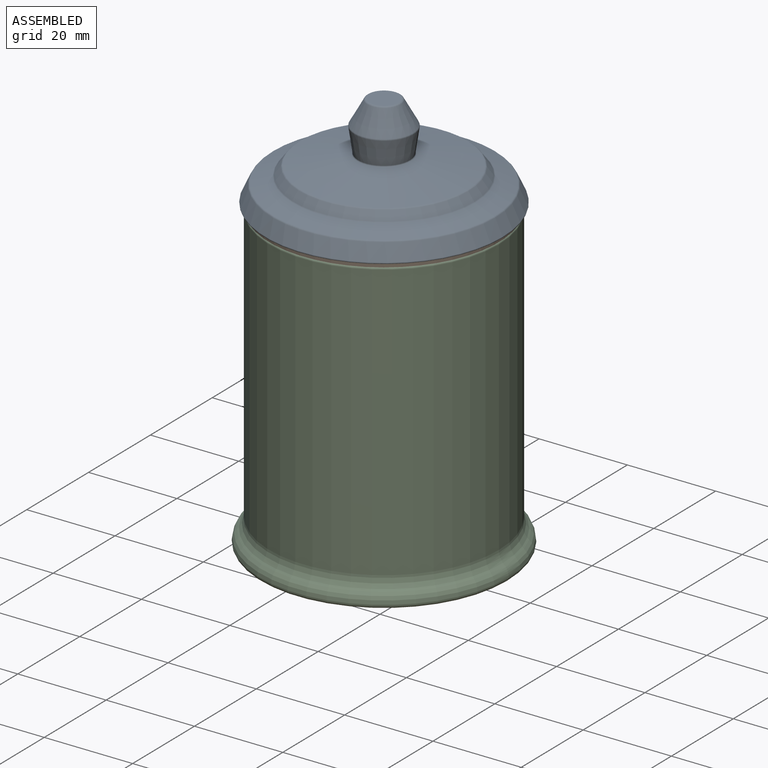
[diagram: assembled view]
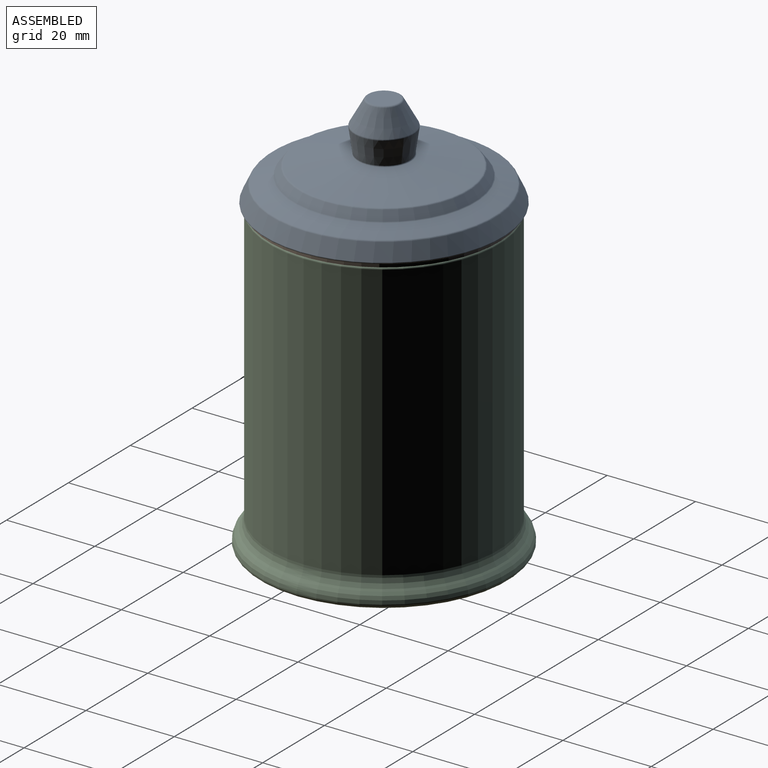
[diagram: assembled view, second angle]
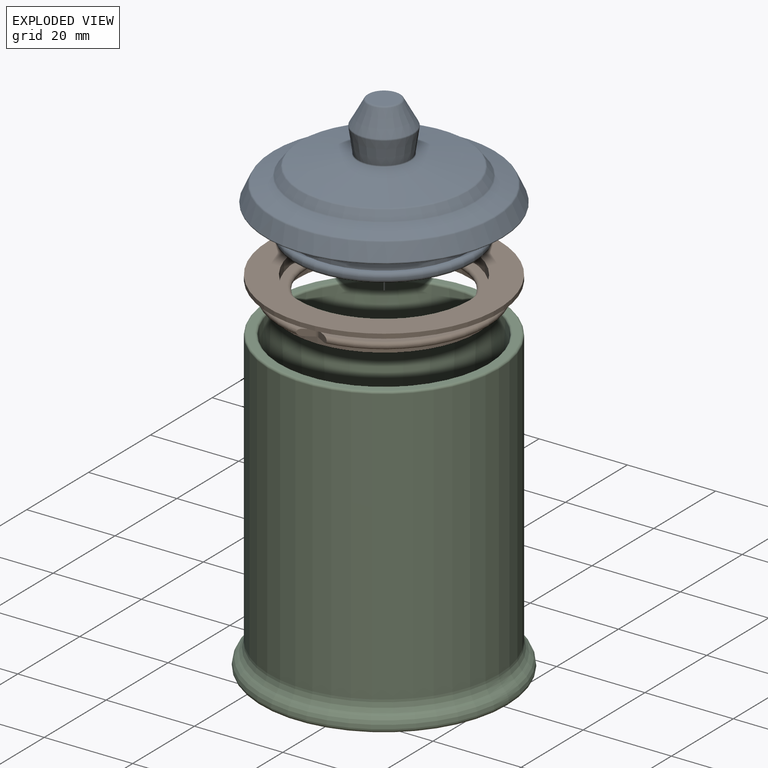
[diagram: exploded view]
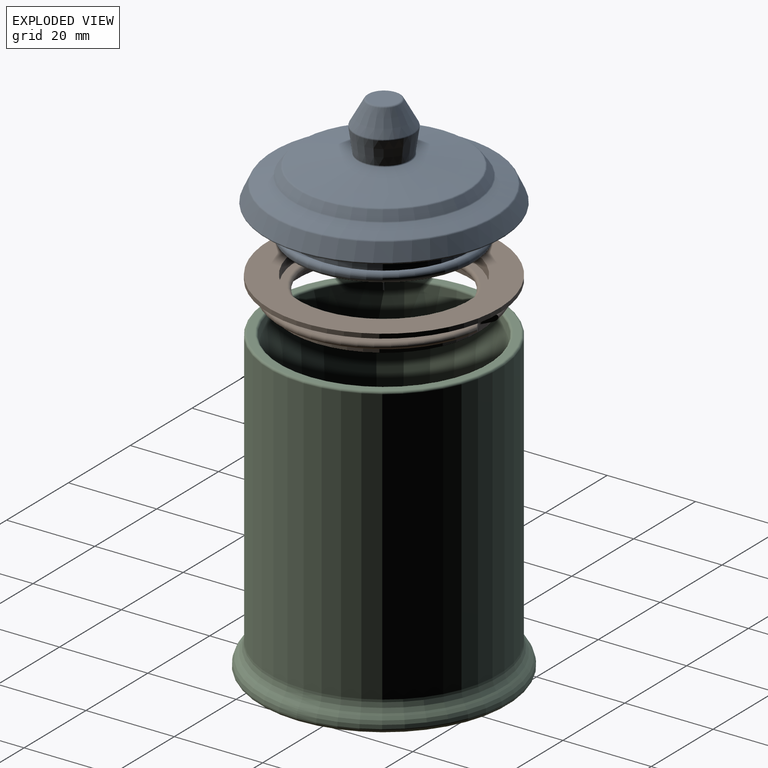
[diagram: exploded view, second angle]
ASSEMBLY  parts=3 mates=4
PART A: 25 faces, bbox 58.1x58.1x28.5 mm
  f0: cone r=6.05mm half-angle=79.5deg, axis (0,0,-1), area 1012.6mm2, adj f1,f24
  f1: torus R=6.1mm, axis (0,0,1), area 14.2mm2, adj f0,f2
  f2: cone r=5.85mm half-angle=8.3deg, axis (0,0,1), area 213.8mm2, adj f1,f3
  f3: torus R=6.14mm, axis (0,0,1), area 13.6mm2, adj f2,f4
  f4: cone r=6.58mm half-angle=29.1deg, axis (0,0,-1), area 189mm2, adj f3,f5
  f5: torus R=3.31mm, axis (0,0,1), area 11.8mm2, adj f4,f6
  f6: plane 6.61x6.61mm, normal (0,0,1), area 34.3mm2, adj f5
  f7: sphere r=18mm, area 899.5mm2, adj f8
  f8: torus R=13.28mm, axis (0,0,1), area 106.1mm2, adj f7,f9
  f9: cone r=15.27mm half-angle=2deg, axis (0,0,-1), area 529.7mm2, adj f8,f10
  f10: torus R=16.47mm, axis (0,0,1), area 152.8mm2, adj f9,f11
  f11: plane 39x39mm, normal (0,0,-1), area 342.8mm2, adj f10,f12
  f12: torus R=19.5mm, axis (0,0,1), area 198.7mm2, adj f11,f13
  f13: cylinder r=20.5mm len=41mm, axis (0,0,1), area 25.8mm2, adj f12,f14
  f14: torus R=19.5mm, axis (0,0,1), area 198.7mm2, adj f13,f15
  f15: plane 39x39mm, normal (0,0,1), area 30.4mm2, adj f14,f16
  f16: cylinder r=19.25mm len=38.5mm, axis (0,0,1), area 580.6mm2, adj f15,f17
  f17: plane 53.22x53.22mm, normal (0,0,-1), area 1060mm2, adj f16,f18
  f18: torus R=26.61mm, axis (0,0,1), area 84.4mm2, adj f17,f19
  f19: cone r=26.83mm half-angle=25deg, axis (0,0,-1), area 623.5mm2, adj f18,f20
  f20: torus R=24.77mm, axis (0,0,1), area 62.3mm2, adj f19,f21
  f21: cone r=24.94mm half-angle=70.3deg, axis (0,0,-1), area 648.6mm2, adj f20,f22
  f22: torus R=20.85mm, axis (0,0,1), area 38.6mm2, adj f21,f23
  f23: cone r=20.44mm half-angle=36deg, axis (0,0,-1), area 280.2mm2, adj f22,f24
  f24: torus R=18.71mm, axis (0,0,1), area 45.3mm2, adj f0,f23
PART B: 21 faces, bbox 52x52x6 mm
  f0: cylinder r=21.5mm len=43mm, axis (0,0,-1), area 202.6mm2, adj f2,f20
  f1: cylinder r=19.5mm len=39mm, axis (0,0,-1), area 275.7mm2, adj f12,f20
  f2: plane 46x45.75mm, normal (0,0,-1), area 202.5mm2, adj f0,f4,f5,f14,f15,f16,f17,f18
  f3: plane 46x45.75mm, normal (0,0,1), area 202.5mm2, adj f4,f5,f6,f14,f15,f16,f17,f18
  f4: torus R=23mm, axis (0,0,-1), area 159.3mm2, adj f2,f3,f14,f17
  f5: torus R=23mm, axis (0,0,-1), area 159.3mm2, adj f2,f3,f15,f16
  f6: cylinder r=21.5mm len=43mm, axis (0,0,-1), area 270.2mm2, adj f3,f7
  f7: plane 52x52mm, normal (0,0,-1), area 671.5mm2, adj f6,f8
  f8: cylinder r=26mm len=52mm, axis (0,0,-1), area 163.4mm2, adj f7,f9
  f9: plane 52x52mm, normal (0,0,1), area 929.1mm2, adj f8,f10
  f10: cylinder r=19.5mm len=39mm, axis (0,0,-1), area 275.7mm2, adj f9,f11
  f11: plane 39x39mm, normal (0,0,1), area 176.7mm2, adj f10,f13
  f12: plane 39x39mm, normal (0,0,-1), area 176.7mm2, adj f1,f13
  f13: torus R=18mm, axis (0,0,1), area 259.4mm2, adj f11,f12
  f14: plane 2.96x1.71mm, normal (0.5,0.87,0), area 4.7mm2, adj f2,f3,f4,f19
  f15: plane 2.96x1.71mm, normal (-0.5,0.87,0), area 4.7mm2, adj f2,f3,f5,f19
  f16: plane 2.96x1.71mm, normal (-0.5,-0.87,0), area 4.7mm2, adj f2,f3,f5,f18
  f17: plane 2.96x1.71mm, normal (0.5,-0.87,0), area 4.7mm2, adj f2,f3,f4,f18
  f18: cylinder r=1mm len=1.5mm, axis (0,0,-1), area 1.6mm2, adj f2,f3,f16,f17
  f19: cylinder r=1mm len=1.5mm, axis (0,0,-1), area 1.6mm2, adj f2,f3,f14,f15
  f20: plane 43x43mm, normal (0,0,-1), area 257.6mm2, adj f0,f1
PART C: 82 faces, bbox 64.9x64.9x69 mm
  f0: plane 42.5x42.5mm, normal (0,0,-1), area 1313.8mm2, adj f5,f23,f24,f25,f26,f27,f28,f29
  f1: torus R=23.97mm, axis (0,0,1), area 112.9mm2, adj f2,f13
  f2: cone r=23.48mm half-angle=3deg, axis (0,0,1), area 8160.6mm2, adj f1,f3
  f3: torus R=17.88mm, axis (0,0,1), area 463.6mm2, adj f2,f4
  f4: plane 35.76x35.76mm, normal (0,0,1), area 1004.2mm2, adj f3
  f5: torus R=21.25mm, axis (0,0,1), area 216mm2, adj f0,f6
  f6: torus R=23.25mm, axis (0,0,1), area 223.2mm2, adj f5,f7
  f7: plane 54.5x54.5mm, normal (0,0,-1), area 634.6mm2, adj f6,f8
  f8: torus R=27.25mm, axis (0,0,1), area 275.2mm2, adj f7,f9
  f9: torus R=25.25mm, axis (0,0,1), area 434.4mm2, adj f8,f10
  f10: torus R=30mm, axis (0,0,1), area 524.9mm2, adj f9,f11
  f11: cylinder r=26mm len=62.5mm, axis (0,0,1), area 10210.2mm2, adj f10,f12
  f12: torus R=25.5mm, axis (0,0,1), area 127.4mm2, adj f11,f13
  f13: plane 51x51mm, normal (0,0,1), area 237.1mm2, adj f1,f12
  f14: plane 2.38x0.5mm, normal (-1,0,0), area 1.2mm2, adj f15,f41,f42,f43
  f15: plane 2.57x0.5mm, normal (0,-1,0), area 1.3mm2, adj f14,f16,f42,f43
  f16: plane 2.38x0.5mm, normal (1,0,0), area 1.2mm2, adj f15,f17,f42,f43
  f17: plane 0.6x0.5mm, normal (0,-1,0), area 0.3mm2, adj f16,f18,f42,f43
  f18: plane 2.38x0.5mm, normal (-1,0,0), area 1.2mm2, adj f17,f19,f42,f43
  f19: plane 2.93x0.5mm, normal (0,-1,0), area 1.5mm2, adj f18,f20,f42,f43
  f20: cylinder r=4.83mm len=9.64mm, axis (0,0,-1), area 7.3mm2, adj f19,f21,f42,f43
  f21: plane 2.94x0.5mm, normal (0,-1,0), area 1.5mm2, adj f20,f22,f42,f43
  f22: plane 2.38x0.5mm, normal (1,0,0), area 1.2mm2, adj f21,f41,f42,f43
  f23: plane 0.59x0.5mm, normal (-1,0,0), area 0.3mm2, adj f0,f24,f40,f42
  f24: plane 7.05x0.5mm, normal (0,1,0), area 3.5mm2, adj f0,f23,f25,f42
  f25: plane 2.38x0.5mm, normal (-1,0,0), area 1.2mm2, adj f0,f24,f26,f42
  f26: plane 0.6x0.5mm, normal (0,1,0), area 0.3mm2, adj f0,f25,f27,f42
  f27: plane 2.38x0.5mm, normal (1,0,0), area 1.2mm2, adj f0,f26,f28,f42
  f28: plane 2.57x0.5mm, normal (0,1,0), area 1.3mm2, adj f0,f27,f29,f42
  f29: plane 2.38x0.5mm, normal (-1,0,0), area 1.2mm2, adj f0,f28,f30,f42
  f30: plane 0.6x0.5mm, normal (0,1,0), area 0.3mm2, adj f0,f29,f31,f42
  f31: plane 2.38x0.5mm, normal (1,0,0), area 1.2mm2, adj f0,f30,f32,f42
  f32: plane 2.94x0.5mm, normal (0,1,0), area 1.5mm2, adj f0,f31,f33,f42
  f33: cylinder r=4.83mm len=8.22mm, axis (0,0,-1), area 5.5mm2, adj f0,f32,f34,f42
  f34: plane 0.5x0.39mm, normal (-0.71,-0.71,0), area 0.3mm2, adj f0,f33,f35,f42
  f35: cylinder r=5.39mm len=9.17mm, axis (0,0,-1), area 6.2mm2, adj f0,f34,f36,f42
  f36: plane 3.56x0.5mm, normal (0,1,0), area 1.8mm2, adj f0,f35,f37,f42
  f37: plane 0.59x0.5mm, normal (1,0,0), area 0.3mm2, adj f0,f36,f38,f42
  f38: plane 3.56x0.5mm, normal (0,-1,0), area 1.8mm2, adj f0,f37,f39,f42
  f39: cylinder r=5.39mm len=10.76mm, axis (0,0,-1), area 8.2mm2, adj f0,f38,f40,f42
  f40: plane 3.56x0.5mm, normal (0,-1,0), area 1.8mm2, adj f0,f23,f39,f42
  f41: plane 0.6x0.5mm, normal (0,-1,0), area 0.3mm2, adj f14,f22,f42,f43
  f42: plane 17.88x10.77mm, normal (0,0,-1), area 31.3mm2, adj f14,f15,f16,f17,f18,f19,f20,f21
  f43: plane 9.64x4.54mm, normal (0,0,-1), area 30.9mm2, adj f14,f15,f16,f17,f18,f19,f20,f21
  f44: plane 0.5x0.48mm, normal (0,-1,0), area 0.2mm2, adj f0,f45,f52,f53
  f45: plane 3.97x0.5mm, normal (-1,0,0), area 2mm2, adj f0,f44,f46,f53
  f46: plane 0.5x0.41mm, normal (0,1,0), area 0.2mm2, adj f0,f45,f47,f53
  f47: plane 1.04x0.81mm, normal (0.62,0.79,0), area 0.7mm2, adj f0,f46,f48,f53
  f48: plane 0.5x0.33mm, normal (0.79,-0.62,0), area 0.2mm2, adj f0,f47,f49,f53
  f49: plane 0.5x0.4mm, normal (-0.63,-0.77,0), area 0.3mm2, adj f0,f48,f50,f53
  f50: extruded ~0.5x0.33mm, area 0.2mm2, adj f0,f49,f51,f53
  f51: extruded ~0.98x0.5mm, area 0.5mm2, adj f0,f50,f52,f53
  f52: plane 2.48x0.5mm, normal (1,0,0), area 1.2mm2, adj f0,f44,f51,f53
  f53: plane 3.97x1.45mm, normal (0,0,-1), area 2.3mm2, adj f44,f45,f46,f47,f48,f49,f50,f51
  f54: plane 3x0.5mm, normal (0,-1,0), area 1.5mm2, adj f0,f55,f61,f62
  f55: plane 4x0.5mm, normal (-1,0,0), area 2mm2, adj f0,f54,f56,f62
  f56: plane 3x0.5mm, normal (0,1,0), area 1.5mm2, adj f0,f55,f61,f62
  f57: plane 2.6x0.5mm, normal (1,0,0), area 1.3mm2, adj f58,f60,f62,f63
  f58: plane 1.6x0.5mm, normal (0,1,0), area 0.8mm2, adj f57,f59,f62,f63
  f59: plane 2.6x0.5mm, normal (-1,0,0), area 1.3mm2, adj f58,f60,f62,f63
  f60: plane 1.6x0.5mm, normal (0,-1,0), area 0.8mm2, adj f57,f59,f62,f63
  f61: plane 4x0.5mm, normal (1,0,0), area 2mm2, adj f0,f54,f56,f62
  f62: plane 4x3mm, normal (0,0,-1), area 7.8mm2, adj f54,f55,f56,f57,f58,f59,f60,f61
  f63: plane 2.6x1.6mm, normal (0,0,-1), area 4.2mm2, adj f57,f58,f59,f60
  f64: extruded ~0.59x0.5mm, area 0.4mm2, adj f65,f77,f78,f80
  f65: extruded ~0.58x0.5mm, area 0.4mm2, adj f64,f66,f78,f80
  f66: extruded ~1.24x0.5mm, area 0.6mm2, adj f65,f67,f78,f80
  f67: extruded ~1.24x0.5mm, area 0.6mm2, adj f66,f68,f78,f80
  f68: extruded ~0.58x0.5mm, area 0.4mm2, adj f67,f69,f78,f80
  f69: extruded ~0.59x0.5mm, area 0.4mm2, adj f68,f70,f78,f80
  f70: extruded ~1.24x0.5mm, area 0.6mm2, adj f69,f77,f78,f80
  f71: extruded ~0.94x0.53mm, area 0.6mm2, adj f0,f72,f76,f78
  f72: extruded ~2.04x1.27mm, area 1.4mm2, adj f0,f71,f73,f78
  f73: extruded ~1.51x0.5mm, area 0.8mm2, adj f0,f72,f74,f78
  f74: extruded ~0.95x0.53mm, area 0.6mm2, adj f0,f73,f75,f78
  f75: extruded ~2.04x1.26mm, area 1.4mm2, adj f0,f74,f76,f78
  f76: extruded ~1.52x0.5mm, area 0.8mm2, adj f0,f71,f75,f78
  f77: extruded ~1.24x0.5mm, area 0.6mm2, adj f64,f70,f78,f80
  f78: plane 4.08x2.53mm, normal (0,0,-1), area 4.4mm2, adj f64,f65,f66,f67,f68,f69,f70,f71
  f79: cylinder r=2.5mm len=5mm, axis (0,0,-1), area 23.6mm2, adj f0,f81
  f80: plane 3.24x1.53mm, normal (0,0,-1), area 4.2mm2, adj f64,f65,f66,f67,f68,f69,f70,f77
  f81: plane 5x5mm, normal (0,0,-1), area 19.6mm2, adj f79
PLACE A t=(-3.17,17.27,-27.26)mm
PLACE B t=(-3.17,17.27,30.74)mm
PLACE C t=(-3.17,17.27,-28.26)mm
MATE cylindrical B.f0 <-> A.f2  axis (0,0,1) through (-3.17,17.27,41.74)mm
MATE planar B.f0 <-> A.f22  axis (0,0,1) through (-3.17,17.27,41.74)mm
MATE planar C.f39 <-> B.f0  axis (0,0,1) through (-3.17,17.27,40.74)mm
MATE cylindrical C.f11 <-> A.f2  axis (0,0,1) through (-3.17,17.27,8.99)mm
